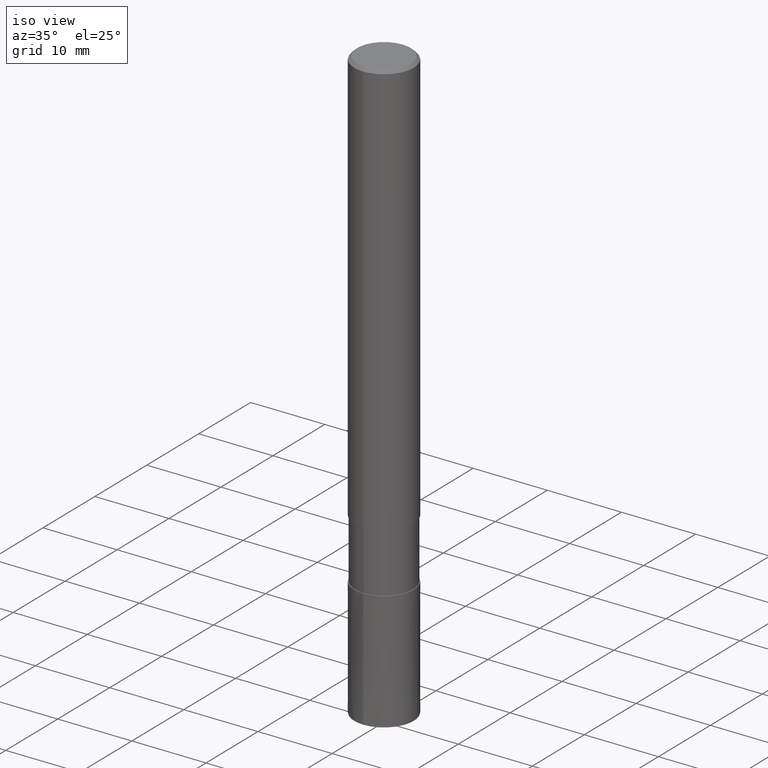
[diagram: clean part render]
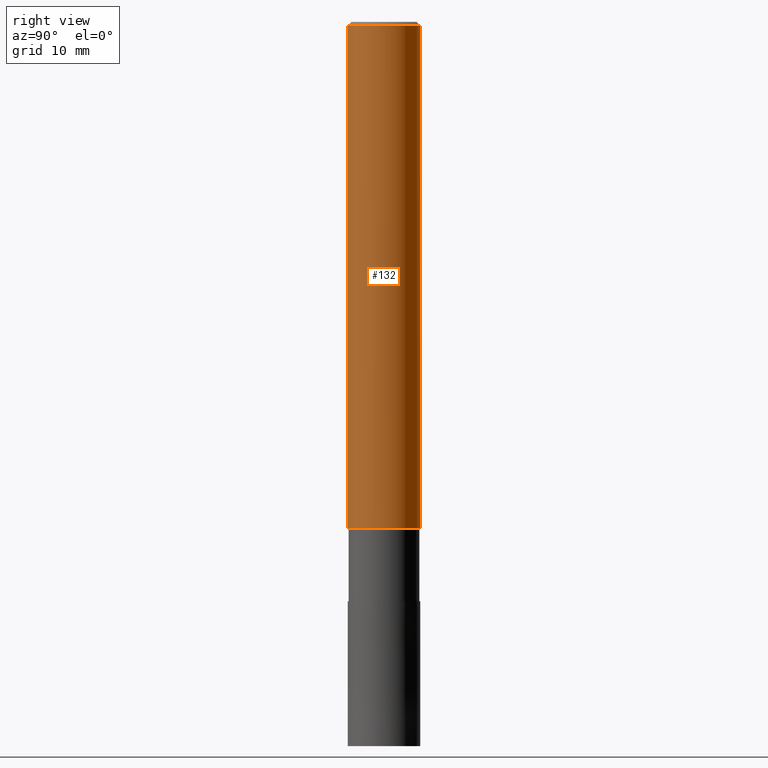
[diagram: tour spotlight — one face highlighted and labeled with its STEP entity id]
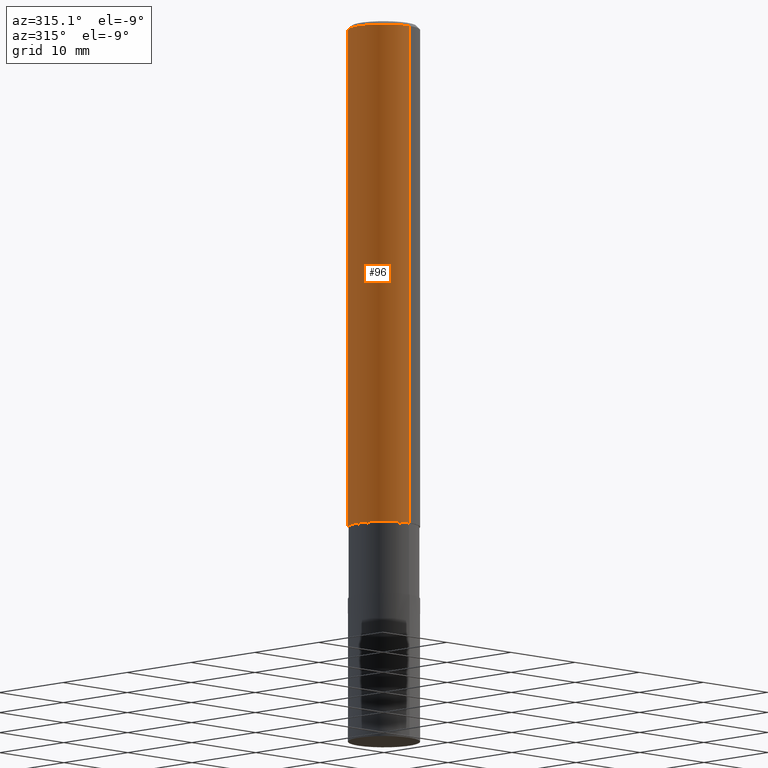
[diagram: tour spotlight — one face highlighted and labeled with its STEP entity id]
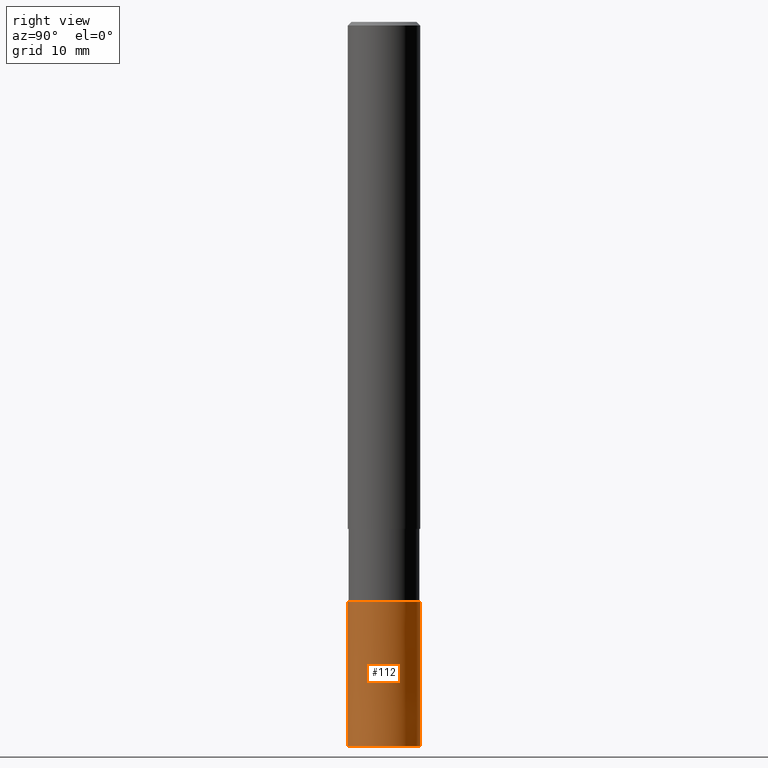
[diagram: tour spotlight — one face highlighted and labeled with its STEP entity id]
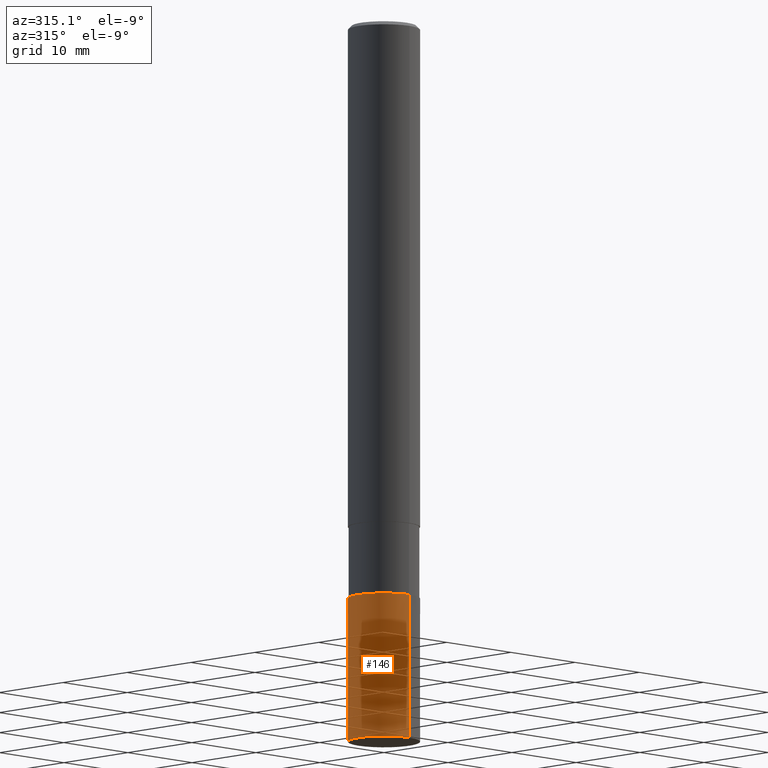
[diagram: tour spotlight — one face highlighted and labeled with its STEP entity id]
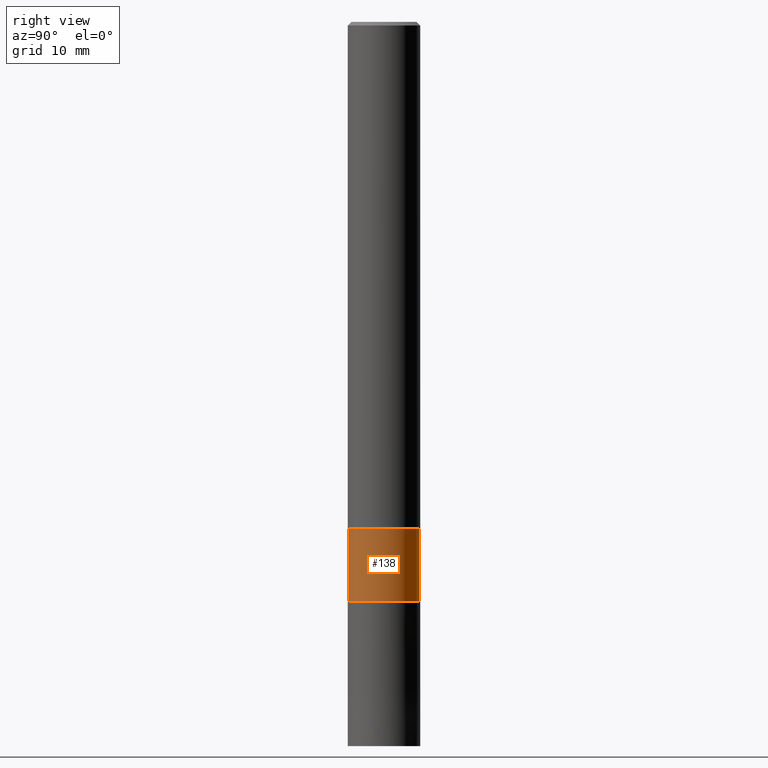
[diagram: tour spotlight — one face highlighted and labeled with its STEP entity id]
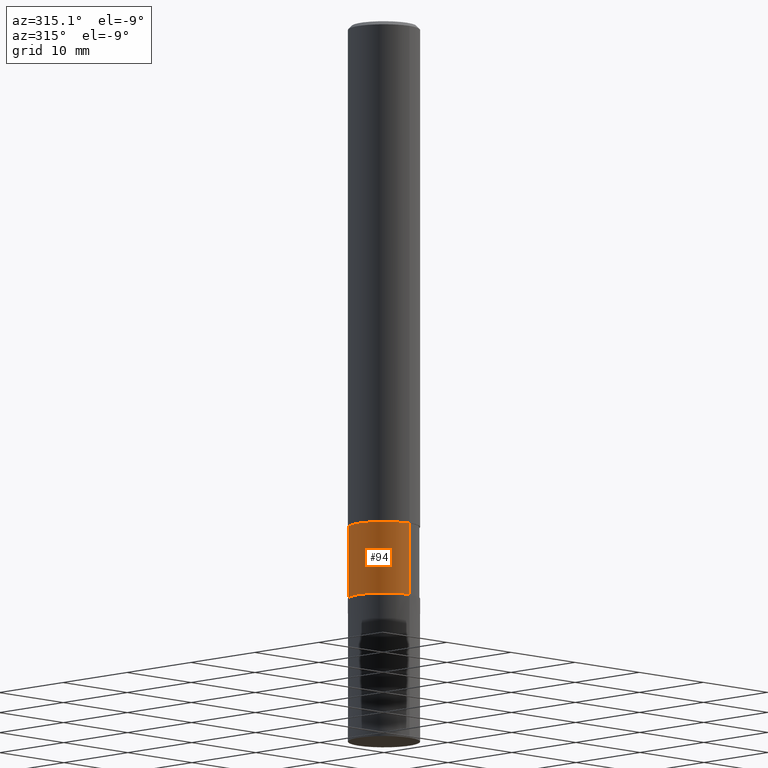
[diagram: tour spotlight — one face highlighted and labeled with its STEP entity id]
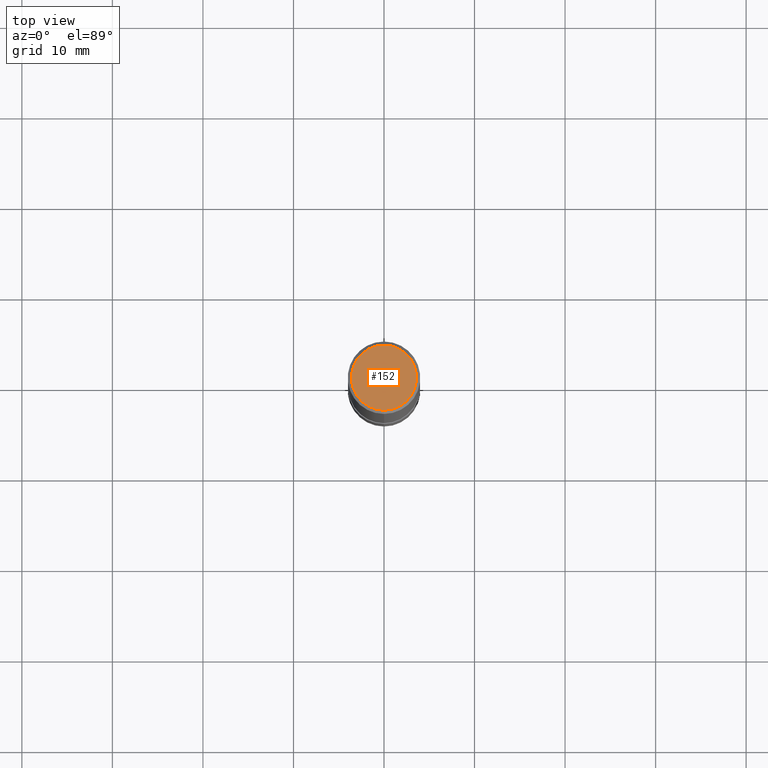
[diagram: tour spotlight — one face highlighted and labeled with its STEP entity id]
A machine part: a face-by-face anatomy tour. The part has 13 B-rep faces; the first image is the clean iso view, then the 7 largest visible faces are spotlighted one at a time (largest first), each with its STEP entity span.

Face 1 — right view, entity #132. In plain terms, the highlighted cylindrical surface (edge-blend (fillet) strip) has radius 4 mm, axis along (-0, -0, 1).
Definition (entity closure, byte-faithful):
#86=EDGE_CURVE('',#124,#156,#207,.T.);
#88=VERTEX_POINT('',#209);
#124=VERTEX_POINT('',#252);
#128=EDGE_CURVE('',#154,#88,#256,.T.);
#132=ADVANCED_FACE('',(#260),#261,.T.);
#140=EDGE_CURVE('',#88,#124,#270,.T.);
#148=EDGE_CURVE('',#154,#156,#280,.T.);
#154=VERTEX_POINT('',#287);
#156=VERTEX_POINT('',#289);
#207=LINE('',#335,#336);
#209=CARTESIAN_POINT('',(0.0,4.0,-56.0));
#252=CARTESIAN_POINT('',(4.89842541528951E-016,-4.0,-56.0));
#256=LINE('',#393,#394);
#260=FACE_OUTER_BOUND('',#398,.T.);
#261=CYLINDRICAL_SURFACE('',#399,4.0);
#270=CIRCLE('',#412,4.0);
#280=CIRCLE('',#423,4.0);
#287=CARTESIAN_POINT('',(0.0,4.0,-0.399999999999999));
#289=CARTESIAN_POINT('',(4.89842541528951E-016,-4.0,-0.399999999999999));
#335=CARTESIAN_POINT('',(4.89842541528951E-016,-4.0,-28.2));
#336=VECTOR('',#476,1.0);
#393=CARTESIAN_POINT('',(-4.89842541528951E-016,4.0,-28.2));
#394=VECTOR('',#540,1.0);
#398=EDGE_LOOP('',(#542,#543,#544,#545));
#399=AXIS2_PLACEMENT_3D('',#546,#547,#548);
#412=AXIS2_PLACEMENT_3D('',#561,#562,#563);
#423=AXIS2_PLACEMENT_3D('',#578,#579,#580);
#476=DIRECTION('',(-0.0,-0.0,1.0));
#540=DIRECTION('',(0.0,0.0,-1.0));
#542=ORIENTED_EDGE('',*,*,#128,.F.);
#543=ORIENTED_EDGE('',*,*,#148,.T.);
#544=ORIENTED_EDGE('',*,*,#86,.F.);
#545=ORIENTED_EDGE('',*,*,#140,.F.);
#546=CARTESIAN_POINT('',(0.0,0.0,-28.2));
#547=DIRECTION('',(-0.0,-0.0,1.0));
#548=DIRECTION('',(0.0,1.0,0.0));
#561=CARTESIAN_POINT('',(0.0,0.0,-56.0));
#562=DIRECTION('',(0.0,0.0,-1.0));
#563=DIRECTION('',(0.0,1.0,0.0));
#578=CARTESIAN_POINT('',(0.0,0.0,-0.399999999999999));
#579=DIRECTION('',(0.0,0.0,-1.0));
#580=DIRECTION('',(0.0,1.0,0.0));

Face 2 — auxiliary view, entity #96. In plain terms, the highlighted cylindrical surface (edge-blend (fillet) strip) has radius 4 mm, axis along (-0, -0, 1).
Definition (entity closure, byte-faithful):
#86=EDGE_CURVE('',#124,#156,#207,.T.);
#88=VERTEX_POINT('',#209);
#90=EDGE_CURVE('',#124,#88,#211,.T.);
#96=ADVANCED_FACE('',(#218),#219,.T.);
#124=VERTEX_POINT('',#252);
#128=EDGE_CURVE('',#154,#88,#256,.T.);
#136=EDGE_CURVE('',#156,#154,#265,.T.);
#154=VERTEX_POINT('',#287);
#156=VERTEX_POINT('',#289);
#207=LINE('',#335,#336);
#209=CARTESIAN_POINT('',(0.0,4.0,-56.0));
#211=CIRCLE('',#341,4.0);
#218=FACE_OUTER_BOUND('',#349,.T.);
#219=CYLINDRICAL_SURFACE('',#350,4.0);
#252=CARTESIAN_POINT('',(4.89842541528951E-016,-4.0,-56.0));
#256=LINE('',#393,#394);
#265=CIRCLE('',#406,4.0);
#287=CARTESIAN_POINT('',(0.0,4.0,-0.399999999999999));
#289=CARTESIAN_POINT('',(4.89842541528951E-016,-4.0,-0.399999999999999));
#335=CARTESIAN_POINT('',(4.89842541528951E-016,-4.0,-28.2));
#336=VECTOR('',#476,1.0);
#341=AXIS2_PLACEMENT_3D('',#477,#478,#479);
#349=EDGE_LOOP('',(#492,#493,#494,#495));
#350=AXIS2_PLACEMENT_3D('',#496,#497,#498);
#393=CARTESIAN_POINT('',(-4.89842541528951E-016,4.0,-28.2));
#394=VECTOR('',#540,1.0);
#406=AXIS2_PLACEMENT_3D('',#550,#551,#552);
#476=DIRECTION('',(-0.0,-0.0,1.0));
#477=CARTESIAN_POINT('',(0.0,0.0,-56.0));
#478=DIRECTION('',(0.0,0.0,-1.0));
#479=DIRECTION('',(0.0,1.0,0.0));
#492=ORIENTED_EDGE('',*,*,#128,.T.);
#493=ORIENTED_EDGE('',*,*,#90,.F.);
#494=ORIENTED_EDGE('',*,*,#86,.T.);
#495=ORIENTED_EDGE('',*,*,#136,.T.);
#496=CARTESIAN_POINT('',(0.0,0.0,-28.2));
#497=DIRECTION('',(-0.0,-0.0,1.0));
#498=DIRECTION('',(0.0,1.0,0.0));
#540=DIRECTION('',(0.0,0.0,-1.0));
#550=CARTESIAN_POINT('',(0.0,0.0,-0.399999999999999));
#551=DIRECTION('',(0.0,0.0,-1.0));
#552=DIRECTION('',(0.0,1.0,0.0));

Face 3 — right view, entity #112. In plain terms, the highlighted conical surface has half-angle 0 deg.
Definition (entity closure, byte-faithful):
#98=VERTEX_POINT('',#221);
#100=EDGE_CURVE('',#98,#114,#223,.T.);
#112=ADVANCED_FACE('',(#237),#238,.T.);
#114=VERTEX_POINT('',#240);
#144=VERTEX_POINT('',#275);
#168=EDGE_CURVE('',#144,#98,#303,.T.);
#170=VERTEX_POINT('',#305);
#172=EDGE_CURVE('',#144,#170,#307,.T.);
#174=EDGE_CURVE('',#114,#170,#309,.T.);
#221=CARTESIAN_POINT('',(0.0,4.0,-80.0));
#223=CIRCLE('',#355,4.0);
#237=FACE_OUTER_BOUND('',#369,.T.);
#238=CONICAL_SURFACE('',#370,3.99995,6.24999999993181E-006);
#240=CARTESIAN_POINT('',(4.89842541528951E-016,-4.0,-80.0));
#275=CARTESIAN_POINT('',(0.0,3.9999,-64.0));
#303=LINE('',#452,#453);
#305=CARTESIAN_POINT('',(4.89830295465413E-016,-3.9999,-64.0));
#307=CIRCLE('',#458,3.9999);
#309=LINE('',#461,#462);
#355=AXIS2_PLACEMENT_3D('',#499,#500,#501);
#369=EDGE_LOOP('',(#523,#524,#525,#526));
#370=AXIS2_PLACEMENT_3D('',#527,#528,#529);
#452=CARTESIAN_POINT('',(-4.89836418497182E-016,3.99995,-72.0));
#453=VECTOR('',#609,1.0);
#458=AXIS2_PLACEMENT_3D('',#610,#611,#612);
#461=CARTESIAN_POINT('',(4.89836418497182E-016,-3.99995,-72.0));
#462=VECTOR('',#613,1.0);
#499=CARTESIAN_POINT('',(0.0,0.0,-80.0));
#500=DIRECTION('',(0.0,0.0,-1.0));
#501=DIRECTION('',(0.0,1.0,0.0));
#523=ORIENTED_EDGE('',*,*,#168,.F.);
#524=ORIENTED_EDGE('',*,*,#172,.T.);
#525=ORIENTED_EDGE('',*,*,#174,.F.);
#526=ORIENTED_EDGE('',*,*,#100,.F.);
#527=CARTESIAN_POINT('',(0.0,0.0,-72.0));
#528=DIRECTION('',(0.0,-0.0,-1.0));
#529=DIRECTION('',(0.0,1.0,0.0));
#609=DIRECTION('',(-7.65378971125652E-022,6.24999999989112E-006,-0.999999999980469));
#610=CARTESIAN_POINT('',(0.0,0.0,-64.0));
#611=DIRECTION('',(0.0,0.0,-1.0));
#612=DIRECTION('',(0.0,1.0,0.0));
#613=DIRECTION('',(-7.65378971125652E-022,6.24999999989112E-006,0.999999999980469));

Face 4 — auxiliary view, entity #146. In plain terms, the highlighted conical surface has half-angle 0 deg.
Definition (entity closure, byte-faithful):
#98=VERTEX_POINT('',#221);
#106=EDGE_CURVE('',#114,#98,#230,.T.);
#114=VERTEX_POINT('',#240);
#144=VERTEX_POINT('',#275);
#146=ADVANCED_FACE('',(#277),#278,.T.);
#168=EDGE_CURVE('',#144,#98,#303,.T.);
#170=VERTEX_POINT('',#305);
#174=EDGE_CURVE('',#114,#170,#309,.T.);
#182=EDGE_CURVE('',#170,#144,#317,.T.);
#221=CARTESIAN_POINT('',(0.0,4.0,-80.0));
#230=CIRCLE('',#363,4.0);
#240=CARTESIAN_POINT('',(4.89842541528951E-016,-4.0,-80.0));
#275=CARTESIAN_POINT('',(0.0,3.9999,-64.0));
#277=FACE_OUTER_BOUND('',#419,.T.);
#278=CONICAL_SURFACE('',#420,3.99995,6.24999999993181E-006);
#303=LINE('',#452,#453);
#305=CARTESIAN_POINT('',(4.89830295465413E-016,-3.9999,-64.0));
#309=LINE('',#461,#462);
#317=CIRCLE('',#473,3.9999);
#363=AXIS2_PLACEMENT_3D('',#510,#511,#512);
#419=EDGE_LOOP('',(#571,#572,#573,#574));
#420=AXIS2_PLACEMENT_3D('',#575,#576,#577);
#452=CARTESIAN_POINT('',(-4.89836418497182E-016,3.99995,-72.0));
#453=VECTOR('',#609,1.0);
#461=CARTESIAN_POINT('',(4.89836418497182E-016,-3.99995,-72.0));
#462=VECTOR('',#613,1.0);
#473=AXIS2_PLACEMENT_3D('',#620,#621,#622);
#510=CARTESIAN_POINT('',(0.0,0.0,-80.0));
#511=DIRECTION('',(0.0,0.0,-1.0));
#512=DIRECTION('',(0.0,1.0,0.0));
#571=ORIENTED_EDGE('',*,*,#168,.T.);
#572=ORIENTED_EDGE('',*,*,#106,.F.);
#573=ORIENTED_EDGE('',*,*,#174,.T.);
#574=ORIENTED_EDGE('',*,*,#182,.T.);
#575=CARTESIAN_POINT('',(0.0,0.0,-72.0));
#576=DIRECTION('',(0.0,-0.0,-1.0));
#577=DIRECTION('',(0.0,1.0,0.0));
#609=DIRECTION('',(-7.65378971125652E-022,6.24999999989112E-006,-0.999999999980469));
#613=DIRECTION('',(-7.65378971125652E-022,6.24999999989112E-006,0.999999999980469));
#620=CARTESIAN_POINT('',(0.0,0.0,-64.0));
#621=DIRECTION('',(0.0,0.0,-1.0));
#622=DIRECTION('',(0.0,1.0,0.0));

Face 5 — right view, entity #138. In plain terms, the highlighted cylindrical surface (edge-blend (fillet) strip) has radius 3.9099 mm, axis along (-0, -0, 1).
Definition (entity closure, byte-faithful):
#84=VERTEX_POINT('',#205);
#102=VERTEX_POINT('',#225);
#116=VERTEX_POINT('',#242);
#118=EDGE_CURVE('',#116,#84,#244,.T.);
#122=EDGE_CURVE('',#102,#126,#250,.T.);
#126=VERTEX_POINT('',#254);
#138=ADVANCED_FACE('',(#267),#268,.T.);
#160=EDGE_CURVE('',#116,#126,#293,.T.);
#176=EDGE_CURVE('',#84,#102,#311,.T.);
#205=CARTESIAN_POINT('',(0.0,3.90995,-64.0));
#225=CARTESIAN_POINT('',(4.7881496131278E-016,-3.90995,-64.0));
#242=CARTESIAN_POINT('',(0.0,3.90995,-56.0));
#244=LINE('',#377,#378);
#250=LINE('',#385,#386);
#254=CARTESIAN_POINT('',(4.7881496131278E-016,-3.90995,-56.0));
#267=FACE_OUTER_BOUND('',#408,.T.);
#268=CYLINDRICAL_SURFACE('',#409,3.90995);
#293=CIRCLE('',#440,3.90995);
#311=CIRCLE('',#465,3.90995);
#377=CARTESIAN_POINT('',(-4.7881496131278E-016,3.90995,-60.0));
#378=VECTOR('',#530,1.0);
#385=CARTESIAN_POINT('',(4.7881496131278E-016,-3.90995,-60.0));
#386=VECTOR('',#539,1.0);
#408=EDGE_LOOP('',(#554,#555,#556,#557));
#409=AXIS2_PLACEMENT_3D('',#558,#559,#560);
#440=AXIS2_PLACEMENT_3D('',#591,#592,#593);
#465=AXIS2_PLACEMENT_3D('',#614,#615,#616);
#530=DIRECTION('',(0.0,0.0,-1.0));
#539=DIRECTION('',(-0.0,-0.0,1.0));
#554=ORIENTED_EDGE('',*,*,#118,.F.);
#555=ORIENTED_EDGE('',*,*,#160,.T.);
#556=ORIENTED_EDGE('',*,*,#122,.F.);
#557=ORIENTED_EDGE('',*,*,#176,.F.);
#558=CARTESIAN_POINT('',(0.0,0.0,-60.0));
#559=DIRECTION('',(-0.0,-0.0,1.0));
#560=DIRECTION('',(0.0,1.0,0.0));
#591=CARTESIAN_POINT('',(0.0,0.0,-56.0));
#592=DIRECTION('',(0.0,0.0,-1.0));
#593=DIRECTION('',(0.0,1.0,0.0));
#614=CARTESIAN_POINT('',(0.0,0.0,-64.0));
#615=DIRECTION('',(0.0,0.0,-1.0));
#616=DIRECTION('',(0.0,1.0,0.0));

Face 6 — auxiliary view, entity #94. In plain terms, the highlighted cylindrical surface (edge-blend (fillet) strip) has radius 3.9099 mm, axis along (-0, -0, 1).
Definition (entity closure, byte-faithful):
#84=VERTEX_POINT('',#205);
#92=EDGE_CURVE('',#126,#116,#213,.T.);
#94=ADVANCED_FACE('',(#215),#216,.T.);
#102=VERTEX_POINT('',#225);
#116=VERTEX_POINT('',#242);
#118=EDGE_CURVE('',#116,#84,#244,.T.);
#122=EDGE_CURVE('',#102,#126,#250,.T.);
#126=VERTEX_POINT('',#254);
#180=EDGE_CURVE('',#102,#84,#315,.T.);
#205=CARTESIAN_POINT('',(0.0,3.90995,-64.0));
#213=CIRCLE('',#344,3.90995);
#215=FACE_OUTER_BOUND('',#346,.T.);
#216=CYLINDRICAL_SURFACE('',#347,3.90995);
#225=CARTESIAN_POINT('',(4.7881496131278E-016,-3.90995,-64.0));
#242=CARTESIAN_POINT('',(0.0,3.90995,-56.0));
#244=LINE('',#377,#378);
#250=LINE('',#385,#386);
#254=CARTESIAN_POINT('',(4.7881496131278E-016,-3.90995,-56.0));
#315=CIRCLE('',#470,3.90995);
#344=AXIS2_PLACEMENT_3D('',#480,#481,#482);
#346=EDGE_LOOP('',(#484,#485,#486,#487));
#347=AXIS2_PLACEMENT_3D('',#488,#489,#490);
#377=CARTESIAN_POINT('',(-4.7881496131278E-016,3.90995,-60.0));
#378=VECTOR('',#530,1.0);
#385=CARTESIAN_POINT('',(4.7881496131278E-016,-3.90995,-60.0));
#386=VECTOR('',#539,1.0);
#470=AXIS2_PLACEMENT_3D('',#617,#618,#619);
#480=CARTESIAN_POINT('',(0.0,0.0,-56.0));
#481=DIRECTION('',(0.0,0.0,-1.0));
#482=DIRECTION('',(0.0,1.0,0.0));
#484=ORIENTED_EDGE('',*,*,#118,.T.);
#485=ORIENTED_EDGE('',*,*,#180,.F.);
#486=ORIENTED_EDGE('',*,*,#122,.T.);
#487=ORIENTED_EDGE('',*,*,#92,.T.);
#488=CARTESIAN_POINT('',(0.0,0.0,-60.0));
#489=DIRECTION('',(-0.0,-0.0,1.0));
#490=DIRECTION('',(0.0,1.0,0.0));
#530=DIRECTION('',(0.0,0.0,-1.0));
#539=DIRECTION('',(-0.0,-0.0,1.0));
#617=CARTESIAN_POINT('',(0.0,0.0,-64.0));
#618=DIRECTION('',(0.0,0.0,-1.0));
#619=DIRECTION('',(0.0,1.0,0.0));

Face 7 — top view, entity #152. In plain terms, the highlighted planar face has unit normal (-0, 0, 1).
Definition (entity closure, byte-faithful):
#130=VERTEX_POINT('',#258);
#150=EDGE_CURVE('',#130,#178,#282,.T.);
#152=ADVANCED_FACE('',(#284),#285,.T.);
#162=EDGE_CURVE('',#178,#130,#295,.T.);
#178=VERTEX_POINT('',#313);
#258=CARTESIAN_POINT('',(4.40858287376056E-016,-3.6,0.0));
#282=CIRCLE('',#426,3.6);
#284=FACE_OUTER_BOUND('',#428,.T.);
#285=PLANE('',#429);
#295=CIRCLE('',#443,3.6);
#313=CARTESIAN_POINT('',(0.0,3.6,0.0));
#426=AXIS2_PLACEMENT_3D('',#581,#582,#583);
#428=EDGE_LOOP('',(#585,#586));
#429=AXIS2_PLACEMENT_3D('',#587,#588,#589);
#443=AXIS2_PLACEMENT_3D('',#594,#595,#596);
#581=CARTESIAN_POINT('',(0.0,0.0,0.0));
#582=DIRECTION('',(0.0,0.0,-1.0));
#583=DIRECTION('',(0.0,1.0,0.0));
#585=ORIENTED_EDGE('',*,*,#162,.F.);
#586=ORIENTED_EDGE('',*,*,#150,.F.);
#587=CARTESIAN_POINT('',(0.0,1.8,0.0));
#588=DIRECTION('',(-0.0,0.0,1.0));
#589=DIRECTION('',(0.0,-1.0,0.0));
#594=CARTESIAN_POINT('',(0.0,0.0,0.0));
#595=DIRECTION('',(0.0,0.0,-1.0));
#596=DIRECTION('',(0.0,1.0,0.0));